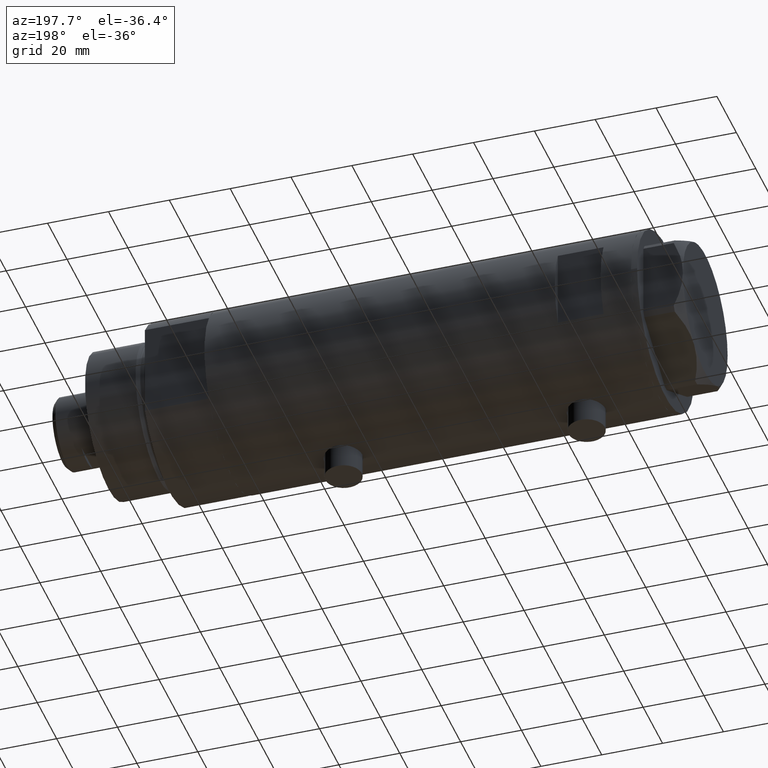
[diagram: clean part render]
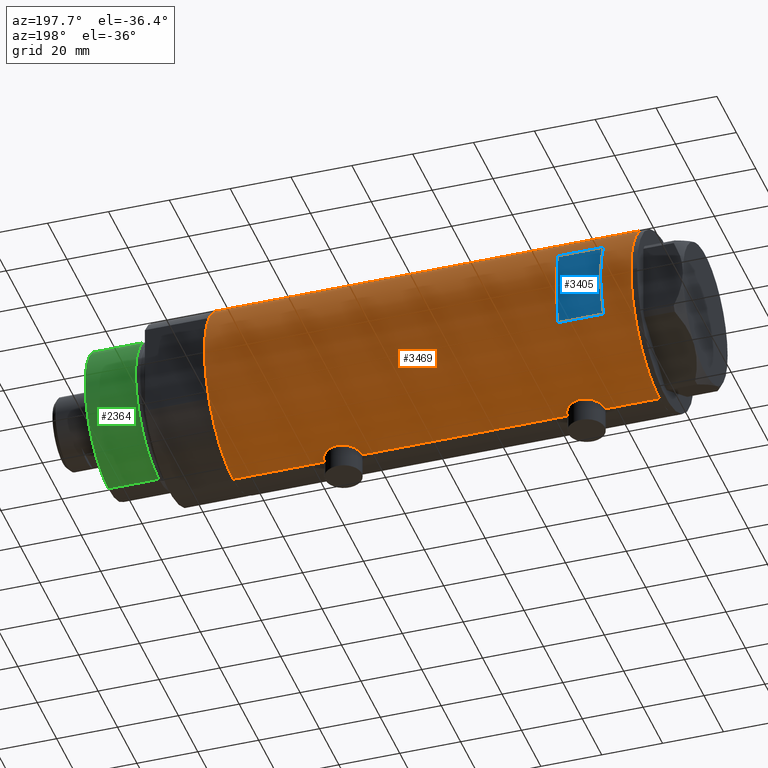
[diagram: same view with three faces highlighted in distinct colors, each labeled with its STEP entity id]
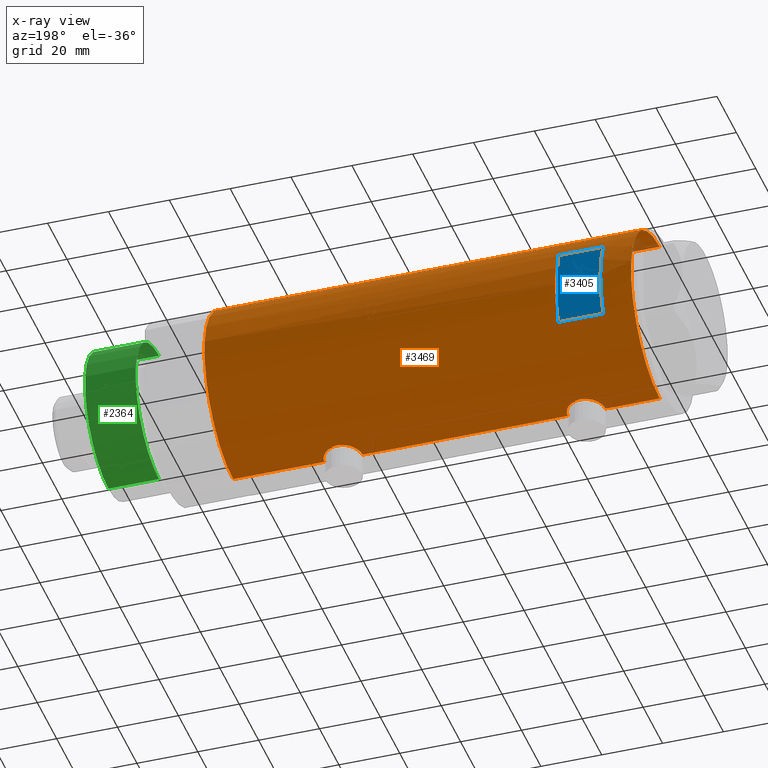
[diagram: x-ray of the same camera — body ghosted, the three highlighted faces saturated]
A machine part, auxiliary view with three faces highlighted in distinct colors.
The next image is the same camera in x-ray (body ghosted, the three faces saturated) — at least one of them is partly hidden behind the body in this view.
Their STEP definitions:

[orange] entity #3469 — the highlighted cylindrical surface (partial cylindrical patch) has radius 29.5 mm, axis along (-1, -0, 0).
#55 = CARTESIAN_POINT ( 'NONE',  ( -29.33379699751449365, 3.132328395749496064, 40.68767835513887121 ) ) ;
#59 = CARTESIAN_POINT ( 'NONE',  ( 12.96148139681573319, 26.49999999999999645, -70.09999999999999432 ) ) ;
#68 = DIRECTION ( 'NONE',  ( -0.000000000000000000, -0.000000000000000000, 1.000000000000000000 ) ) ;
#76 = EDGE_CURVE ( 'NONE', #2979, #2404, #1582, .T. ) ;
#93 = CARTESIAN_POINT ( 'NONE',  ( -29.50000000000000355, 3.612706708267620518E-15, 39.84999999999999432 ) ) ;
#96 = LINE ( 'NONE', #4211, #3566 ) ;
#101 = CARTESIAN_POINT ( 'NONE',  ( -29.43341305963175003, 2.016871341298211551, -39.72974668998804759 ) ) ;
#102 = VECTOR ( 'NONE', #4336, 1000.000000000000000 ) ;
#103 = ORIENTED_EDGE ( 'NONE', *, *, #2416, .T. ) ;
#118 = CARTESIAN_POINT ( 'NONE',  ( 29.31463363472446204, 3.333180401682677374, -37.63656844683045222 ) ) ;
#134 = CARTESIAN_POINT ( 'NONE',  ( 28.72066933684369516, 6.738715173607846332, -34.22836955953555105 ) ) ;
#139 = CARTESIAN_POINT ( 'NONE',  ( -29.48289442777306490, 1.024392307325225904, -39.96888222528700396 ) ) ;
#145 = VERTEX_POINT ( 'NONE', #4030 ) ;
#153 = CARTESIAN_POINT ( 'NONE',  ( 28.65280969280606982, 7.019670864411682309, -33.55213168683108904 ) ) ;
#166 = CARTESIAN_POINT ( 'NONE',  ( 29.17471722935868428, 4.373569479501278501, 43.50231157590983599 ) ) ;
#170 = AXIS2_PLACEMENT_3D ( 'NONE', #4398, #641, #4136 ) ;
#184 = CARTESIAN_POINT ( 'NONE',  ( -29.07990598238133018, 4.966177878631057752, -29.98314968353490073 ) ) ;
#259 = CARTESIAN_POINT ( 'NONE',  ( 28.86328010881652872, 6.097564286278109869, 53.97368290922695877 ) ) ;
#278 = EDGE_CURVE ( 'NONE', #145, #2404, #2893, .T. ) ;
#283 = CARTESIAN_POINT ( 'NONE',  ( 29.48463566286631377, 0.9832945201638395583, 57.03937451762292454 ) ) ;
#301 = EDGE_CURVE ( 'NONE', #3559, #2596, #2486, .T. ) ;
#303 = CARTESIAN_POINT ( 'NONE',  ( -29.21045586191521437, 4.133246019522339942, 50.80573901566481965 ) ) ;
#309 = CARTESIAN_POINT ( 'NONE',  ( 29.40387556522357571, 2.422597899785629227, 56.71486039769832388 ) ) ;
#336 = CARTESIAN_POINT ( 'NONE',  ( -29.25454443288369077, 3.812919888526640655, 51.06897379180909979 ) ) ;
#379 = CARTESIAN_POINT ( 'NONE',  ( -29.48933702067640539, 0.8192029158410143452, 39.90049277733301381 ) ) ;
#441 = CARTESIAN_POINT ( 'NONE',  ( 29.50000000000000355, 0.000000000000000000, -70.09999999999999432 ) ) ;
#447 = CARTESIAN_POINT ( 'NONE',  ( -28.99931529802530150, 5.412890550536860523, -36.93129199055215395 ) ) ;
#470 = CARTESIAN_POINT ( 'NONE',  ( -29.25435602127558354, 3.814249285079243101, -38.76783729533990908 ) ) ;
#487 = CARTESIAN_POINT ( 'NONE',  ( 29.45150476095191650, 1.707859807438201427, -38.20707118656058299 ) ) ;
#491 = DIRECTION ( 'NONE',  ( 0.000000000000000000, 0.000000000000000000, 1.000000000000000000 ) ) ;
#492 = CARTESIAN_POINT ( 'NONE',  ( -29.21113960567727474, 4.128622307952522164, -38.51014533383553129 ) ) ;
#509 = CARTESIAN_POINT ( 'NONE',  ( 28.53073993742368941, 7.499791908386146844, -31.39461948433038785 ) ) ;
#513 = CARTESIAN_POINT ( 'NONE',  ( -28.83028740688047620, 6.250162243045984667, -34.20646065908373146 ) ) ;
#534 = CARTESIAN_POINT ( 'NONE',  ( -29.50000000000000355, 3.612708057484692393E-15, -70.09999999999999432 ) ) ;
#535 = CARTESIAN_POINT ( 'NONE',  ( -28.83925158138409017, 6.209208576703539428, -34.62198382868808011 ) ) ;
#541 = CARTESIAN_POINT ( 'NONE',  ( 29.50000000000000355, -8.867894669064240341E-21, 57.09999999999999432 ) ) ;
#551 = DIRECTION ( 'NONE',  ( 1.000000000000000000, 0.000000000000000000, 0.000000000000000000 ) ) ;
#576 = CARTESIAN_POINT ( 'NONE',  ( 29.50000000000000355, -2.068661527048439545E-15, -38.39999999999999147 ) ) ;
#585 = CARTESIAN_POINT ( 'NONE',  ( 29.50000000000000355, -8.867894669064240341E-21, 57.09999999999999432 ) ) ;
#596 = CARTESIAN_POINT ( 'NONE',  ( 29.47533087885488712, 1.230190383163953571, -23.49747868232938686 ) ) ;
#607 = CARTESIAN_POINT ( 'NONE',  ( 28.54372006395177763, 7.450900983269891142, 50.58765735635913785 ) ) ;
#632 = CARTESIAN_POINT ( 'NONE',  ( -29.50000000000000355, -1.251314770453635394E-15, 52.34999999999999432 ) ) ;
#638 = CARTESIAN_POINT ( 'NONE',  ( 28.54350045195475971, 7.451747857568896016, 48.61733997124497364 ) ) ;
#641 = DIRECTION ( 'NONE',  ( 0.000000000000000000, 0.000000000000000000, 1.000000000000000000 ) ) ;
#653 = CARTESIAN_POINT ( 'NONE',  ( 28.95590528945747977, 5.641861744747094676, -25.95235088071115115 ) ) ;
#664 = CARTESIAN_POINT ( 'NONE',  ( 28.65280969280606982, 7.019670864411686750, 46.94786831316888964 ) ) ;
#676 = CARTESIAN_POINT ( 'NONE',  ( 0.000000000000000000, 0.000000000000000000, 60.09999999999998721 ) ) ;
#677 = CARTESIAN_POINT ( 'NONE',  ( -29.50000000000000355, 3.612708057484692393E-15, -70.09999999999999432 ) ) ;
#682 = CARTESIAN_POINT ( 'NONE',  ( -29.37156641804198287, 2.775801885207112019, 51.71472569706632783 ) ) ;
#688 = CARTESIAN_POINT ( 'NONE',  ( -29.37156641804197932, 2.775801885207114239, -28.18527430293367786 ) ) ;
#697 = DIRECTION ( 'NONE',  ( -1.000000000000000000, 3.552713678800500535E-15, 0.000000000000000000 ) ) ;
#717 = EDGE_CURVE ( 'NONE', #4413, #4468, #1466, .T. ) ;
#733 = CARTESIAN_POINT ( 'NONE',  ( -29.43187585711095267, 2.013330896687707927, -27.87959139970892508 ) ) ;
#793 = CARTESIAN_POINT ( 'NONE',  ( -29.21113960567726409, 4.128622307952519499, 41.38985466616446018 ) ) ;
#798 = CARTESIAN_POINT ( 'NONE',  ( -29.25454443288368367, 3.812919888526643764, -28.83102620819089168 ) ) ;
#830 = VECTOR ( 'NONE', #2309, 1000.000000000000000 ) ;
#839 = CARTESIAN_POINT ( 'NONE',  ( -29.37021410611213668, 2.770135525807583043, -39.40634069022829067 ) ) ;
#843 = ORIENTED_EDGE ( 'NONE', *, *, #3169, .T. ) ;
#861 = CARTESIAN_POINT ( 'NONE',  ( 29.40165444879503909, 2.418426732012822100, 42.49632943565210041 ) ) ;
#871 = CARTESIAN_POINT ( 'NONE',  ( 29.26187100173484978, 3.763222966830668703, -37.40598258060619230 ) ) ;
#876 = CARTESIAN_POINT ( 'NONE',  ( -29.38727827406289705, 2.583363936682820494, -39.49478026128666386 ) ) ;
#879 = CARTESIAN_POINT ( 'NONE',  ( 29.31463363472445849, 3.333180401682678262, 42.86343155316954778 ) ) ;
#887 = LINE ( 'NONE', #441, #1131 ) ;
#894 = AXIS2_PLACEMENT_3D ( 'NONE', #2444, #3142, #2137 ) ;
#901 = VECTOR ( 'NONE', #2636, 1000.000000000000000 ) ;
#922 = CARTESIAN_POINT ( 'NONE',  ( 29.05056090758568388, 5.132790299589556682, 44.12608273347915855 ) ) ;
#931 = DIRECTION ( 'NONE',  ( -0.000000000000000000, -0.000000000000000000, -1.000000000000000000 ) ) ;
#935 = CARTESIAN_POINT ( 'NONE',  ( -29.50000000000000711, 0.4142160563134682505, 52.34999999999998010 ) ) ;
#991 = CARTESIAN_POINT ( 'NONE',  ( 28.80468126786726657, 6.368639251981141669, 53.56860510682070498 ) ) ;
#1001 = DIRECTION ( 'NONE',  ( 0.000000000000000000, 0.000000000000000000, 1.000000000000000000 ) ) ;
#1017 = CARTESIAN_POINT ( 'NONE',  ( -29.46640581083893551, 1.421634556901802515, -27.71041108910579354 ) ) ;
#1061 = CARTESIAN_POINT ( 'NONE',  ( -29.45783481716065921, 1.627188261681548287, 40.05163589091055343 ) ) ;
#1131 = VECTOR ( 'NONE', #2175, 1000.000000000000000 ) ;
#1132 = CARTESIAN_POINT ( 'NONE',  ( -28.89816269917384517, 5.930588606439749277, 44.08529684457830200 ) ) ;
#1137 = CARTESIAN_POINT ( 'NONE',  ( -29.50000000000000355, 3.612706708236066082E-15, -40.05000000000000426 ) ) ;
#1158 = CARTESIAN_POINT ( 'NONE',  ( -28.99817753551064570, 5.423057650933437834, -30.66603848537406307 ) ) ;
#1170 = CARTESIAN_POINT ( 'NONE',  ( 28.89325003604223951, 5.958922200807236891, -35.48084786495515175 ) ) ;
#1187 = CARTESIAN_POINT ( 'NONE',  ( 28.58083212642746318, 7.306745240314148404, -32.60953669436207747 ) ) ;
#1191 = AXIS2_PLACEMENT_3D ( 'NONE', #4097, #1001, #551 ) ;
#1197 = CARTESIAN_POINT ( 'NONE',  ( 29.45150476095192360, 1.707859807438201871, 42.29292881343940280 ) ) ;
#1235 = CARTESIAN_POINT ( 'NONE',  ( 29.08204711695421452, 4.951923910293528408, 43.96183978405700543 ) ) ;
#1251 = CARTESIAN_POINT ( 'NONE',  ( -29.50000000000000355, 3.612708057484692393E-15, -70.09999999999999432 ) ) ;
#1259 = CARTESIAN_POINT ( 'NONE',  ( 28.72066933684370227, 6.738715173607846332, 46.27163044046444185 ) ) ;
#1291 = CARTESIAN_POINT ( 'NONE',  ( 28.72322018454529768, 6.726124749058826957, 52.92706852850999155 ) ) ;
#1336 = CARTESIAN_POINT ( 'NONE',  ( 29.49693976195336020, 0.4910732786937798133, 57.08799094295623178 ) ) ;
#1370 = CARTESIAN_POINT ( 'NONE',  ( 28.72322018454529768, 6.726124749058831398, -27.57293147149000490 ) ) ;
#1393 = CARTESIAN_POINT ( 'NONE',  ( -28.87327190949137901, 6.049038945481235885, 44.47548271794828167 ) ) ;
#1437 = ORIENTED_EDGE ( 'NONE', *, *, #76, .T. ) ;
#1466 = CIRCLE ( 'NONE', #1888, 29.50000000000000355 ) ;
#1480 = CARTESIAN_POINT ( 'NONE',  ( -29.49787850362430319, 0.4089683628077628863, -40.04001026437014588 ) ) ;
#1498 = CARTESIAN_POINT ( 'NONE',  ( 29.17471722935867717, 4.373569479501276724, -36.99768842409014269 ) ) ;
#1502 = CARTESIAN_POINT ( 'NONE',  ( -28.94521404191312186, 5.694822755760260868, -36.38333046401345428 ) ) ;
#1519 = CARTESIAN_POINT ( 'NONE',  ( 29.50000000000000711, 0.4977435627019808351, 42.09999999999998721 ) ) ;
#1538 = CARTESIAN_POINT ( 'NONE',  ( 28.54372006395178119, 7.450900983269892031, -29.91234264364084794 ) ) ;
#1575 = LINE ( 'NONE', #2970, #102 ) ;
#1582 = LINE ( 'NONE', #534, #1679 ) ;
#1585 = CARTESIAN_POINT ( 'NONE',  ( 28.53073993742368586, 7.499791908386146844, 49.10538051566958018 ) ) ;
#1608 = B_SPLINE_CURVE_WITH_KNOTS ( 'NONE', 3,
 ( #4326, #1519, #3616, #1197, #3947, #861, #1878, #879, #3278, #166, #4307, #1235, #922, #2025, #2323, #4110, #1259, #664, #2352, #3728, #4035, #638, #1585, #3031, #607, #3050, #3323, #2738, #1291, #2286, #991, #259, #2642, #1972, #1998, #3419, #3682, #2711, #4008, #309, #3011, #2980, #283, #1336, #2683, #585 ),
 .UNSPECIFIED., .F., .F.,
 ( 4, 2, 2, 2, 2, 2, 2, 2, 2, 2, 2, 2, 2, 2, 2, 2, 2, 2, 2, 2, 2, 2, 4 ),
 ( 1.324216582005999085E-18, 0.001471587963626213007, 0.002207381945439318427, 0.002943175927252423846, 0.004414763890878634252, 0.005150557872691738370, 0.005886351854504841621, 0.007357939818131030776, 0.008829527781757219931, 0.009565321763570316244, 0.01030111574538341256, 0.01177270370900960171, 0.01324429167263579260, 0.01471587963626198176, 0.01545167361807507807, 0.01618746759988817091, 0.01692326158170126896, 0.01765905556351436007, 0.01913064352714053881, 0.02060223149076671756, 0.02207381945439289284, 0.02280961343620598047, 0.02354540741801906811 ),
 .UNSPECIFIED. ) ;
#1629 = CARTESIAN_POINT ( 'NONE',  ( 28.77649569280672992, 6.494415104660919091, -27.14065011183376441 ) ) ;
#1650 = CARTESIAN_POINT ( 'NONE',  ( 28.69800960089390074, 6.832546664705481554, -27.79724969708692583 ) ) ;
#1669 = FACE_BOUND ( 'NONE', #1903, .T. ) ;
#1677 = CARTESIAN_POINT ( 'NONE',  ( -29.07990598238133373, 4.966177878631058640, 49.91685031646510140 ) ) ;
#1679 = VECTOR ( 'NONE', #491, 1000.000000000000000 ) ;
#1708 = CARTESIAN_POINT ( 'NONE',  ( -28.99817753551063859, 5.423057650933438723, 49.23396151462593195 ) ) ;
#1724 = CARTESIAN_POINT ( 'NONE',  ( -28.91416466586724354, 5.850419487802253293, 48.30827647633628175 ) ) ;
#1745 = CARTESIAN_POINT ( 'NONE',  ( -29.49787850362430675, 0.4089683628077635524, 39.85998973562985270 ) ) ;
#1780 = ORIENTED_EDGE ( 'NONE', *, *, #2992, .F. ) ;
#1797 = ORIENTED_EDGE ( 'NONE', *, *, #2908, .F. ) ;
#1809 = CARTESIAN_POINT ( 'NONE',  ( -29.48289442777306490, 1.024392307325222573, 39.93111777471299462 ) ) ;
#1814 = EDGE_CURVE ( 'NONE', #3449, #4413, #3470, .T. ) ;
#1818 = LINE ( 'NONE', #3513, #3226 ) ;
#1838 = CARTESIAN_POINT ( 'NONE',  ( -29.12335997091253148, 4.707903814166467527, -29.66921992621196225 ) ) ;
#1847 = EDGE_CURVE ( 'NONE', #2979, #4460, #3439, .T. ) ;
#1856 = CARTESIAN_POINT ( 'NONE',  ( -29.50000000000000355, 3.612706708236066082E-15, -40.05000000000000426 ) ) ;
#1871 = CARTESIAN_POINT ( 'NONE',  ( 28.53063088452982043, 7.500206755597514707, -30.41171143095193585 ) ) ;
#1876 = CARTESIAN_POINT ( 'NONE',  ( -29.31451746246149526, 3.307268797680004369, -39.10714841985004142 ) ) ;
#1878 = CARTESIAN_POINT ( 'NONE',  ( 29.38138226830144006, 2.652609128011935269, 42.58045398040328422 ) ) ;
#1888 = AXIS2_PLACEMENT_3D ( 'NONE', #3185, #68, #697 ) ;
#1896 = CARTESIAN_POINT ( 'NONE',  ( 29.43668864566816623, 1.946133027943908855, -38.14730912701000420 ) ) ;
#1903 = EDGE_LOOP ( 'NONE', ( #4348, #2024, #4322, #4038 ) ) ;
#1937 = CARTESIAN_POINT ( 'NONE',  ( 29.38138226830143296, 2.652609128011934825, -37.91954601959669446 ) ) ;
#1950 = ORIENTED_EDGE ( 'NONE', *, *, #278, .F. ) ;
#1955 = VECTOR ( 'NONE', #2487, 1000.000000000000000 ) ;
#1972 = CARTESIAN_POINT ( 'NONE',  ( 28.95590528945748687, 5.641861744747095564, 54.54764911928883464 ) ) ;
#1989 = CARTESIAN_POINT ( 'NONE',  ( 29.49999999999999645, 0.2453482418156872069, -23.39999999999998792 ) ) ;
#1993 = CARTESIAN_POINT ( 'NONE',  ( -29.43187585711095267, 2.013330896687707927, 52.02040860029106994 ) ) ;
#1998 = CARTESIAN_POINT ( 'NONE',  ( 28.98787507734748914, 5.475789924529796515, 54.73089043376624119 ) ) ;
#2002 = ORIENTED_EDGE ( 'NONE', *, *, #1847, .F. ) ;
#2024 = ORIENTED_EDGE ( 'NONE', *, *, #1814, .F. ) ;
#2025 = CARTESIAN_POINT ( 'NONE',  ( 28.95615051861771860, 5.649234316505054032, 44.64284581253273387 ) ) ;
#2033 = CARTESIAN_POINT ( 'NONE',  ( 28.86328010881652872, 6.097564286278116086, -26.52631709077303768 ) ) ;
#2068 = CARTESIAN_POINT ( 'NONE',  ( -28.83909818927745050, 6.209925900742495841, 46.91778075451993857 ) ) ;
#2091 = CARTESIAN_POINT ( 'NONE',  ( -29.07940225710133575, 4.969011347753390595, 42.28730265529815568 ) ) ;
#2131 = CIRCLE ( 'NONE', #170, 29.50000000000000355 ) ;
#2137 = DIRECTION ( 'NONE',  ( 1.000000000000000000, 0.000000000000000000, 0.000000000000000000 ) ) ;
#2158 = CARTESIAN_POINT ( 'NONE',  ( -29.37021410611214023, 2.770135525807581711, 40.49365930977168659 ) ) ;
#2175 = DIRECTION ( 'NONE',  ( 0.000000000000000000, 0.000000000000000000, 1.000000000000000000 ) ) ;
#2180 = CARTESIAN_POINT ( 'NONE',  ( -28.83909818927744695, 6.209925900742495841, -32.98221924548006001 ) ) ;
#2181 = B_SPLINE_CURVE_WITH_KNOTS ( 'NONE', 3,
 ( #576, #2972, #3271, #487, #1896, #2229, #1937, #118, #871, #1498, #3253, #3938, #3294, #4255, #1170, #2547, #134, #153, #2574, #4269, #1187, #3609, #509, #1871, #1538, #2929, #4453, #1650, #1370, #1629, #3023, #2033, #4432, #653, #3408, #2655, #4074, #3039, #4101, #4372, #3785, #596, #2696, #3743, #1989, #2674 ),
 .UNSPECIFIED., .F., .F.,
 ( 4, 2, 2, 2, 2, 2, 2, 2, 2, 2, 2, 2, 2, 2, 2, 2, 2, 2, 2, 2, 2, 2, 4 ),
 ( 2.009130182846392961E-18, 0.001471587963626178313, 0.002207381945439266819, 0.002943175927252355759, 0.004414763890878538842, 0.005150557872691629950, 0.005886351854504721925, 0.007357939818130915417, 0.008829527781757108909, 0.009565321763570205221, 0.01030111574538330153, 0.01177270370900949416, 0.01324429167263568505, 0.01471587963626187941, 0.01545167361807497398, 0.01618746759988807030, 0.01692326158170116834, 0.01765905556351426292, 0.01913064352714046595, 0.02060223149076666205, 0.02207381945439286508, 0.02280961343620596313, 0.02354540741801906117 ),
 .UNSPECIFIED. ) ;
#2229 = CARTESIAN_POINT ( 'NONE',  ( 29.40165444879503909, 2.418426732012822544, -38.00367056434787116 ) ) ;
#2235 = CARTESIAN_POINT ( 'NONE',  ( -28.86473101544358144, 6.089252369705489443, -32.37667050833967863 ) ) ;
#2256 = CARTESIAN_POINT ( 'NONE',  ( -29.21045586191521082, 4.133246019522339942, -29.09426098433517893 ) ) ;
#2277 = CARTESIAN_POINT ( 'NONE',  ( 29.50000000000000355, 0.000000000000000000, 70.09999999999999432 ) ) ;
#2286 = CARTESIAN_POINT ( 'NONE',  ( 28.77649569280673703, 6.494415104660911986, 53.35934988816622848 ) ) ;
#2309 = DIRECTION ( 'NONE',  ( 0.000000000000000000, 0.000000000000000000, 1.000000000000000000 ) ) ;
#2323 = CARTESIAN_POINT ( 'NONE',  ( 28.89325003604224307, 5.958922200807236891, 45.01915213504484825 ) ) ;
#2345 = LINE ( 'NONE', #1251, #901 ) ;
#2352 = CARTESIAN_POINT ( 'NONE',  ( 28.63233008736633778, 7.102474189478610533, 47.17814868761112024 ) ) ;
#2372 = CARTESIAN_POINT ( 'NONE',  ( -12.96148139681573319, 26.49999999999998934, 60.09999999999998721 ) ) ;
#2402 = CARTESIAN_POINT ( 'NONE',  ( -29.45614208737134021, 1.620034288692375091, -27.76011356088387672 ) ) ;
#2404 = VERTEX_POINT ( 'NONE', #4270 ) ;
#2416 = EDGE_CURVE ( 'NONE', #145, #3122, #96, .T. ) ;
#2417 = CARTESIAN_POINT ( 'NONE',  ( -28.86473101544358855, 6.089252369705490331, 47.52332949166031995 ) ) ;
#2444 = CARTESIAN_POINT ( 'NONE',  ( 0.000000000000000000, 0.000000000000000000, -70.09999999999999432 ) ) ;
#2483 = CARTESIAN_POINT ( 'NONE',  ( -29.38727827406289705, 2.583363936682818274, 40.40521973871332762 ) ) ;
#2486 = CIRCLE ( 'NONE', #894, 29.50000000000000355 ) ;
#2487 = DIRECTION ( 'NONE',  ( -0.000000000000000000, -0.000000000000000000, -1.000000000000000000 ) ) ;
#2491 = VERTEX_POINT ( 'NONE', #2277 ) ;
#2506 = CARTESIAN_POINT ( 'NONE',  ( -28.94521404191311120, 5.694822755760257316, 43.51666953598655141 ) ) ;
#2530 = EDGE_LOOP ( 'NONE', ( #2828, #843, #2002, #1437, #1950, #103, #3622, #1797, #1780, #3056, #3753, #2742 ) ) ;
#2539 = CARTESIAN_POINT ( 'NONE',  ( 29.50000000000000355, -2.068661527048439545E-15, -38.39999999999999147 ) ) ;
#2547 = CARTESIAN_POINT ( 'NONE',  ( 28.77473834757382321, 6.507156404236259739, -34.66162684060295618 ) ) ;
#2574 = CARTESIAN_POINT ( 'NONE',  ( 28.63233008736633778, 7.102474189478609645, -33.32185131238886555 ) ) ;
#2576 = AXIS2_PLACEMENT_3D ( 'NONE', #676, #931, #2728 ) ;
#2582 = CARTESIAN_POINT ( 'NONE',  ( -29.50000000000000355, 7.333735512235174214E-18, -27.54999999999999361 ) ) ;
#2596 = VERTEX_POINT ( 'NONE', #677 ) ;
#2636 = DIRECTION ( 'NONE',  ( 0.000000000000000000, 0.000000000000000000, 1.000000000000000000 ) ) ;
#2642 = CARTESIAN_POINT ( 'NONE',  ( 28.89369475765811757, 5.952264974793427754, 54.16950516186245324 ) ) ;
#2655 = CARTESIAN_POINT ( 'NONE',  ( 29.08308069045668276, 4.954707331652127955, -25.24826371623226962 ) ) ;
#2659 = CARTESIAN_POINT ( 'NONE',  ( -29.12335997091252793, 4.707903814166468415, 50.23078007378799725 ) ) ;
#2674 = CARTESIAN_POINT ( 'NONE',  ( 29.50000000000000355, -8.867894669064240341E-21, -23.39999999999999147 ) ) ;
#2683 = CARTESIAN_POINT ( 'NONE',  ( 29.50000000000000711, 0.2453482418156837930, 57.10000000000000853 ) ) ;
#2685 = LINE ( 'NONE', #4419, #830 ) ;
#2696 = CARTESIAN_POINT ( 'NONE',  ( 29.48463566286630666, 0.9832945201638434440, -23.46062548237705414 ) ) ;
#2711 = CARTESIAN_POINT ( 'NONE',  ( 29.26131531204081426, 3.767377415172554311, 56.10345302571128201 ) ) ;
#2724 = CYLINDRICAL_SURFACE ( 'NONE', #1191, 29.50000000000000355 ) ;
#2728 = DIRECTION ( 'NONE',  ( 1.000000000000000000, -1.776356839400250267E-15, 0.000000000000000000 ) ) ;
#2733 = VERTEX_POINT ( 'NONE', #541 ) ;
#2738 = CARTESIAN_POINT ( 'NONE',  ( 28.69800960089390074, 6.832546664705480666, 52.70275030291305285 ) ) ;
#2742 = ORIENTED_EDGE ( 'NONE', *, *, #3350, .F. ) ;
#2753 = CARTESIAN_POINT ( 'NONE',  ( -28.90008889585329399, 5.919338933253947665, 48.11640207058049157 ) ) ;
#2779 = CARTESIAN_POINT ( 'NONE',  ( -29.25435602127557999, 3.814249285079248430, 41.13216270466008950 ) ) ;
#2788 = CARTESIAN_POINT ( 'NONE',  ( -29.50000000000000711, 0.4142160563134684170, -27.54999999999999716 ) ) ;
#2822 = CARTESIAN_POINT ( 'NONE',  ( -28.83925158138407951, 6.209208576703536764, 45.27801617131193268 ) ) ;
#2828 = ORIENTED_EDGE ( 'NONE', *, *, #301, .T. ) ;
#2847 = CARTESIAN_POINT ( 'NONE',  ( -28.83035796536222151, 6.249836767212675781, -33.38856505377280826 ) ) ;
#2848 = CARTESIAN_POINT ( 'NONE',  ( 12.96148139681571898, 26.50000000000000355, 45.09999999999998721 ) ) ;
#2850 = VERTEX_POINT ( 'NONE', #2539 ) ;
#2890 = CARTESIAN_POINT ( 'NONE',  ( -29.07940225710135351, 4.969011347753392371, -37.61269734470183579 ) ) ;
#2893 = B_SPLINE_CURVE_WITH_KNOTS ( 'NONE', 3,
 ( #632, #935, #3393, #4081, #3750, #1993, #3772, #682, #3414, #336, #303, #2659, #1677, #1708, #3099, #1724, #2753, #4126, #2417, #2068, #3464, #3120, #2822, #1393, #1132, #2506, #4238, #3170, #3881, #2091, #3482, #793, #2779, #4151, #55, #2158, #2483, #3542, #1061, #1809, #379, #1745, #3854, #93 ),
 .UNSPECIFIED., .F., .F.,
 ( 4, 2, 2, 2, 2, 2, 2, 2, 2, 2, 2, 2, 2, 2, 2, 2, 2, 2, 2, 2, 2, 4 ),
 ( 1.215526637565713846E-18, 0.001224749128302325164, 0.001837123692453484711, 0.002449498256604644257, 0.003674247384906971156, 0.004898996513209298923, 0.006123745641511625822, 0.007348494769813952721, 0.007960869333965118338, 0.008573243898116282222, 0.009797993026418609988, 0.01102274215472093775, 0.01224749128302326726, 0.01285986584717442247, 0.01347224041132557767, 0.01469698953962788809, 0.01592173866793019851, 0.01653411323208135372, 0.01714648779623250893, 0.01837123692453480894, 0.01898361148868596068, 0.01959598605283711242 ),
 .UNSPECIFIED. ) ;
#2908 = EDGE_CURVE ( 'NONE', #2733, #2491, #2685, .T. ) ;
#2910 = CARTESIAN_POINT ( 'NONE',  ( -28.96258065965881556, 5.606121065329693565, -36.57051985068761013 ) ) ;
#2929 = CARTESIAN_POINT ( 'NONE',  ( 28.59328333056173221, 7.258376466535469973, -28.94875332515167798 ) ) ;
#2937 = CARTESIAN_POINT ( 'NONE',  ( -28.90008889585329044, 5.919338933253947665, -31.78359792941951056 ) ) ;
#2940 = VERTEX_POINT ( 'NONE', #3015 ) ;
#2970 = CARTESIAN_POINT ( 'NONE',  ( 29.50000000000000355, 0.000000000000000000, -70.09999999999999432 ) ) ;
#2972 = CARTESIAN_POINT ( 'NONE',  ( 29.50000000000000000, 0.4977435627019808351, -38.39999999999999147 ) ) ;
#2979 = VERTEX_POINT ( 'NONE', #2582 ) ;
#2980 = CARTESIAN_POINT ( 'NONE',  ( 29.47533087885489067, 1.230190383163956458, 57.00252131767059183 ) ) ;
#2992 = EDGE_CURVE ( 'NONE', #3903, #2733, #1608, .T. ) ;
#3011 = CARTESIAN_POINT ( 'NONE',  ( 29.43913092143246146, 1.954882548385549423, 56.85749234733351187 ) ) ;
#3015 = CARTESIAN_POINT ( 'NONE',  ( 29.50000000000000355, -8.867894669064240341E-21, -23.39999999999999147 ) ) ;
#3023 = CARTESIAN_POINT ( 'NONE',  ( 28.80468126786726657, 6.368639251981146998, -26.93139489317929502 ) ) ;
#3031 = CARTESIAN_POINT ( 'NONE',  ( 28.53063088452982043, 7.500206755597514707, 50.08828856904803928 ) ) ;
#3039 = CARTESIAN_POINT ( 'NONE',  ( 29.26131531204080360, 3.767377415172554311, -24.39654697428870733 ) ) ;
#3050 = CARTESIAN_POINT ( 'NONE',  ( 28.59328333056173221, 7.258376466535469085, 51.55124667484830780 ) ) ;
#3056 = ORIENTED_EDGE ( 'NONE', *, *, #3488, .F. ) ;
#3060 = FACE_OUTER_BOUND ( 'NONE', #2530, .T. ) ;
#3099 = CARTESIAN_POINT ( 'NONE',  ( -28.96085629491409463, 5.616414220648533018, 48.87199639590006939 ) ) ;
#3120 = CARTESIAN_POINT ( 'NONE',  ( -28.83028740688048686, 6.250162243045983779, 45.69353934091627423 ) ) ;
#3122 = VERTEX_POINT ( 'NONE', #4026 ) ;
#3142 = DIRECTION ( 'NONE',  ( 0.000000000000000000, 0.000000000000000000, 1.000000000000000000 ) ) ;
#3169 = EDGE_CURVE ( 'NONE', #2596, #4460, #2345, .T. ) ;
#3170 = CARTESIAN_POINT ( 'NONE',  ( -28.99931529802529795, 5.412890550536858747, 42.96870800944780910 ) ) ;
#3185 = CARTESIAN_POINT ( 'NONE',  ( 0.000000000000000000, 0.000000000000000000, 45.09999999999998721 ) ) ;
#3215 = CARTESIAN_POINT ( 'NONE',  ( -29.12318177724206336, 4.709191267490246524, -37.92971050241653330 ) ) ;
#3226 = VECTOR ( 'NONE', #4200, 1000.000000000000000 ) ;
#3228 = VERTEX_POINT ( 'NONE', #2372 ) ;
#3238 = CARTESIAN_POINT ( 'NONE',  ( -29.50000000000000355, 0.2042768310961494138, -40.05000000000001137 ) ) ;
#3253 = CARTESIAN_POINT ( 'NONE',  ( 29.14416130131008842, 4.572185141625601190, -36.85025411765555958 ) ) ;
#3271 = CARTESIAN_POINT ( 'NONE',  ( 29.48742029994219038, 0.9867701249543442410, -38.35094507494218874 ) ) ;
#3276 = CARTESIAN_POINT ( 'NONE',  ( -29.48933702067640539, 0.8192029158410158995, -39.99950722266698477 ) ) ;
#3278 = CARTESIAN_POINT ( 'NONE',  ( 29.26187100173485334, 3.763222966830669147, 43.09401741939380059 ) ) ;
#3294 = CARTESIAN_POINT ( 'NONE',  ( 29.05056090758568388, 5.132790299589557570, -36.37391726652082724 ) ) ;
#3323 = CARTESIAN_POINT ( 'NONE',  ( 28.62953349941190240, 7.116010646391488947, 52.01979460923099197 ) ) ;
#3350 = EDGE_CURVE ( 'NONE', #3559, #2850, #887, .T. ) ;
#3370 = CIRCLE ( 'NONE', #2576, 29.50000000000000355 ) ;
#3393 = CARTESIAN_POINT ( 'NONE',  ( -29.49128627113591961, 0.8212788586050381312, 52.30923124908873945 ) ) ;
#3408 = CARTESIAN_POINT ( 'NONE',  ( 28.98787507734748203, 5.475789924529798292, -25.76910956623374460 ) ) ;
#3414 = CARTESIAN_POINT ( 'NONE',  ( -29.33500454540941149, 3.134363790739242095, 51.52262134463679644 ) ) ;
#3419 = CARTESIAN_POINT ( 'NONE',  ( 29.08308069045668631, 4.954707331652121738, 55.25173628376772683 ) ) ;
#3439 = B_SPLINE_CURVE_WITH_KNOTS ( 'NONE', 3,
 ( #3801, #2788, #4157, #1017, #2402, #733, #3778, #688, #3919, #798, #2256, #1838, #184, #1158, #3595, #3634, #2937, #4216, #2235, #2180, #2847, #513, #535, #3614, #3548, #1502, #2910, #447, #4304, #2890, #3215, #492, #470, #1876, #3945, #839, #876, #101, #3571, #139, #3276, #1480, #3238, #1137 ),
 .UNSPECIFIED., .F., .F.,
 ( 4, 2, 2, 2, 2, 2, 2, 2, 2, 2, 2, 2, 2, 2, 2, 2, 2, 2, 2, 2, 2, 4 ),
 ( 7.123987567693931303E-21, 0.001224749128302327550, 0.001837123692453492083, 0.002449498256604656400, 0.003674247384906980697, 0.004898996513209304994, 0.006123745641511629291, 0.007348494769813953588, 0.007960869333965100991, 0.008573243898116250997, 0.009797993026418545803, 0.01102274215472084234, 0.01224749128302314062, 0.01285986584717429930, 0.01347224041132545451, 0.01469698953962778921, 0.01592173866793012219, 0.01653411323208128780, 0.01714648779623245689, 0.01837123692453478466, 0.01898361148868595374, 0.01959598605283711936 ),
 .UNSPECIFIED. ) ;
#3449 = VERTEX_POINT ( 'NONE', #4070 ) ;
#3464 = CARTESIAN_POINT ( 'NONE',  ( -28.83035796536222861, 6.249836767212678446, 46.51143494622721164 ) ) ;
#3469 = ADVANCED_FACE ( 'NONE', ( #1669, #3060 ), #2724, .T. ) ;
#3470 = LINE ( 'NONE', #59, #1955 ) ;
#3482 = CARTESIAN_POINT ( 'NONE',  ( -29.12318177724206336, 4.709191267490243860, 41.97028949758345817 ) ) ;
#3488 = EDGE_CURVE ( 'NONE', #2940, #3903, #1575, .T. ) ;
#3513 = CARTESIAN_POINT ( 'NONE',  ( -12.96148139681573319, 26.49999999999999645, -70.09999999999999432 ) ) ;
#3542 = CARTESIAN_POINT ( 'NONE',  ( -29.43341305963176424, 2.016871341298207998, 40.17025331001194388 ) ) ;
#3548 = CARTESIAN_POINT ( 'NONE',  ( -28.89816269917384872, 5.930588606439748389, -35.81470315542169658 ) ) ;
#3559 = VERTEX_POINT ( 'NONE', #3688 ) ;
#3566 = VECTOR ( 'NONE', #3912, 1000.000000000000000 ) ;
#3571 = CARTESIAN_POINT ( 'NONE',  ( -29.45783481716065211, 1.627188261681552950, -39.84836410908945226 ) ) ;
#3595 = CARTESIAN_POINT ( 'NONE',  ( -28.96085629491409108, 5.616414220648534794, -31.02800360409991498 ) ) ;
#3609 = CARTESIAN_POINT ( 'NONE',  ( 28.54350045195475261, 7.451747857568895128, -31.88266002875499794 ) ) ;
#3614 = CARTESIAN_POINT ( 'NONE',  ( -28.87327190949137901, 6.049038945481233220, -35.42451728205170980 ) ) ;
#3616 = CARTESIAN_POINT ( 'NONE',  ( 29.48742029994219038, 0.9867701249543437969, 42.14905492505778994 ) ) ;
#3622 = ORIENTED_EDGE ( 'NONE', *, *, #3899, .F. ) ;
#3634 = CARTESIAN_POINT ( 'NONE',  ( -28.91416466586724709, 5.850419487802254181, -31.59172352366371328 ) ) ;
#3682 = CARTESIAN_POINT ( 'NONE',  ( 29.14546206473282197, 4.578181670952601756, 55.56056091603292657 ) ) ;
#3688 = CARTESIAN_POINT ( 'NONE',  ( 29.50000000000000355, 0.000000000000000000, -70.09999999999999432 ) ) ;
#3728 = CARTESIAN_POINT ( 'NONE',  ( 28.59637095282950625, 7.245897747848926151, 47.64872625722391319 ) ) ;
#3743 = CARTESIAN_POINT ( 'NONE',  ( 29.49693976195335310, 0.4910732786937820893, -23.41200905704375046 ) ) ;
#3750 = CARTESIAN_POINT ( 'NONE',  ( -29.45614208737133310, 1.620034288692374647, 52.13988643911609699 ) ) ;
#3753 = ORIENTED_EDGE ( 'NONE', *, *, #4194, .F. ) ;
#3763 = CARTESIAN_POINT ( 'NONE',  ( 29.50000000000000355, -1.363453657738827866E-15, 42.09999999999999432 ) ) ;
#3772 = CARTESIAN_POINT ( 'NONE',  ( -29.41782704931129899, 2.208494778271261172, 51.95038297927174398 ) ) ;
#3778 = CARTESIAN_POINT ( 'NONE',  ( -29.41782704931129899, 2.208494778271265169, -27.94961702072823684 ) ) ;
#3785 = CARTESIAN_POINT ( 'NONE',  ( 29.43913092143246857, 1.954882548385551644, -23.64250765266648102 ) ) ;
#3801 = CARTESIAN_POINT ( 'NONE',  ( -29.50000000000000355, 7.333735512235174214E-18, -27.54999999999999361 ) ) ;
#3854 = CARTESIAN_POINT ( 'NONE',  ( -29.50000000000000711, 0.2042768310961484424, 39.84999999999999432 ) ) ;
#3881 = CARTESIAN_POINT ( 'NONE',  ( -29.01875661852154664, 5.308007315943999771, 42.79411629999108158 ) ) ;
#3899 = EDGE_CURVE ( 'NONE', #2491, #3122, #2131, .T. ) ;
#3903 = VERTEX_POINT ( 'NONE', #3763 ) ;
#3912 = DIRECTION ( 'NONE',  ( 0.000000000000000000, 0.000000000000000000, 1.000000000000000000 ) ) ;
#3919 = CARTESIAN_POINT ( 'NONE',  ( -29.33500454540941149, 3.134363790739243871, -28.37737865536320570 ) ) ;
#3938 = CARTESIAN_POINT ( 'NONE',  ( 29.08204711695422517, 4.951923910293530184, -36.53816021594297325 ) ) ;
#3945 = CARTESIAN_POINT ( 'NONE',  ( -29.33379699751450431, 3.132328395749495620, -39.21232164486112026 ) ) ;
#3947 = CARTESIAN_POINT ( 'NONE',  ( 29.43668864566815913, 1.946133027943908633, 42.35269087298997448 ) ) ;
#4008 = CARTESIAN_POINT ( 'NONE',  ( 29.31521205951408859, 3.327945423969223881, 56.33906509227089288 ) ) ;
#4026 = CARTESIAN_POINT ( 'NONE',  ( -29.50000000000000355, 3.612708057484692393E-15, 70.09999999999999432 ) ) ;
#4030 = CARTESIAN_POINT ( 'NONE',  ( -29.50000000000000355, -1.251314770453635394E-15, 52.34999999999999432 ) ) ;
#4035 = CARTESIAN_POINT ( 'NONE',  ( 28.58083212642745607, 7.306745240314146628, 47.89046330563792253 ) ) ;
#4038 = ORIENTED_EDGE ( 'NONE', *, *, #4093, .F. ) ;
#4070 = CARTESIAN_POINT ( 'NONE',  ( 12.96148139681573319, 26.49999999999998934, 60.09999999999998721 ) ) ;
#4074 = CARTESIAN_POINT ( 'NONE',  ( 29.14546206473282197, 4.578181670952601756, -24.93943908396707698 ) ) ;
#4081 = CARTESIAN_POINT ( 'NONE',  ( -29.46640581083894617, 1.421634556901803403, 52.18958891089418017 ) ) ;
#4093 = EDGE_CURVE ( 'NONE', #4468, #3228, #1818, .T. ) ;
#4097 = CARTESIAN_POINT ( 'NONE',  ( 0.000000000000000000, 0.000000000000000000, -70.09999999999999432 ) ) ;
#4101 = CARTESIAN_POINT ( 'NONE',  ( 29.31521205951408504, 3.327945423969221217, -24.16093490772910357 ) ) ;
#4110 = CARTESIAN_POINT ( 'NONE',  ( 28.77473834757381610, 6.507156404236260627, 45.83837315939703672 ) ) ;
#4126 = CARTESIAN_POINT ( 'NONE',  ( -28.87539346372184568, 6.038655803256916421, 47.72452664083071738 ) ) ;
#4136 = DIRECTION ( 'NONE',  ( 1.000000000000000000, 0.000000000000000000, 0.000000000000000000 ) ) ;
#4151 = CARTESIAN_POINT ( 'NONE',  ( -29.31451746246148460, 3.307268797680008365, 40.79285158014994295 ) ) ;
#4157 = CARTESIAN_POINT ( 'NONE',  ( -29.49128627113591250, 0.8212788586050365769, -27.59076875091126269 ) ) ;
#4176 = CARTESIAN_POINT ( 'NONE',  ( -12.96148139681574030, 26.50000000000000355, 45.09999999999998721 ) ) ;
#4194 = EDGE_CURVE ( 'NONE', #2850, #2940, #2181, .T. ) ;
#4199 = EDGE_CURVE ( 'NONE', #3228, #3449, #3370, .T. ) ;
#4200 = DIRECTION ( 'NONE',  ( 0.000000000000000000, 0.000000000000000000, 1.000000000000000000 ) ) ;
#4211 = CARTESIAN_POINT ( 'NONE',  ( -29.50000000000000355, 3.612708057484692393E-15, -70.09999999999999432 ) ) ;
#4216 = CARTESIAN_POINT ( 'NONE',  ( -28.87539346372183857, 6.038655803256918198, -32.17547335916925277 ) ) ;
#4238 = CARTESIAN_POINT ( 'NONE',  ( -28.96258065965880846, 5.606121065329690900, 43.32948014931237424 ) ) ;
#4255 = CARTESIAN_POINT ( 'NONE',  ( 28.95615051861772571, 5.649234316505056697, -35.85715418746725192 ) ) ;
#4269 = CARTESIAN_POINT ( 'NONE',  ( 28.59637095282950270, 7.245897747848926151, -32.85127374277607970 ) ) ;
#4270 = CARTESIAN_POINT ( 'NONE',  ( -29.50000000000000355, 3.612706708267620518E-15, 39.84999999999999432 ) ) ;
#4304 = CARTESIAN_POINT ( 'NONE',  ( -29.01875661852154309, 5.308007315943998883, -37.10588370000889569 ) ) ;
#4307 = CARTESIAN_POINT ( 'NONE',  ( 29.14416130131007421, 4.572185141625601190, 43.64974588234441910 ) ) ;
#4322 = ORIENTED_EDGE ( 'NONE', *, *, #4199, .F. ) ;
#4326 = CARTESIAN_POINT ( 'NONE',  ( 29.50000000000000355, -1.363453657738827866E-15, 42.09999999999999432 ) ) ;
#4336 = DIRECTION ( 'NONE',  ( 0.000000000000000000, 0.000000000000000000, 1.000000000000000000 ) ) ;
#4348 = ORIENTED_EDGE ( 'NONE', *, *, #717, .F. ) ;
#4372 = CARTESIAN_POINT ( 'NONE',  ( 29.40387556522357215, 2.422597899785628339, -23.78513960230166191 ) ) ;
#4398 = CARTESIAN_POINT ( 'NONE',  ( 0.000000000000000000, 0.000000000000000000, 70.09999999999999432 ) ) ;
#4413 = VERTEX_POINT ( 'NONE', #2848 ) ;
#4419 = CARTESIAN_POINT ( 'NONE',  ( 29.50000000000000355, 0.000000000000000000, -70.09999999999999432 ) ) ;
#4432 = CARTESIAN_POINT ( 'NONE',  ( 28.89369475765811757, 5.952264974793427754, -26.33049483813752545 ) ) ;
#4453 = CARTESIAN_POINT ( 'NONE',  ( 28.62953349941190950, 7.116010646391489836, -28.48020539076899027 ) ) ;
#4460 = VERTEX_POINT ( 'NONE', #1856 ) ;
#4468 = VERTEX_POINT ( 'NONE', #4176 ) ;

[blue] entity #3405 — the highlighted planar face has unit normal (0, -1, -0).
#59 = CARTESIAN_POINT ( 'NONE',  ( 12.96148139681573319, 26.49999999999999645, -70.09999999999999432 ) ) ;
#245 = DIRECTION ( 'NONE',  ( 0.000000000000000000, -1.000000000000000000, -0.000000000000000000 ) ) ;
#267 = PLANE ( 'NONE',  #2128 ) ;
#292 = DIRECTION ( 'NONE',  ( 0.000000000000000000, 0.000000000000000000, -1.000000000000000000 ) ) ;
#316 = ORIENTED_EDGE ( 'NONE', *, *, #2545, .T. ) ;
#573 = CARTESIAN_POINT ( 'NONE',  ( -29.50000000000000355, 26.50000000000000355, 60.09999999999998721 ) ) ;
#661 = LINE ( 'NONE', #2022, #1747 ) ;
#895 = VECTOR ( 'NONE', #2369, 1000.000000000000000 ) ;
#989 = ORIENTED_EDGE ( 'NONE', *, *, #4093, .T. ) ;
#1747 = VECTOR ( 'NONE', #4324, 1000.000000000000000 ) ;
#1814 = EDGE_CURVE ( 'NONE', #3449, #4413, #3470, .T. ) ;
#1818 = LINE ( 'NONE', #3513, #3226 ) ;
#1822 = LINE ( 'NONE', #3871, #895 ) ;
#1954 = FACE_OUTER_BOUND ( 'NONE', #4422, .T. ) ;
#1955 = VECTOR ( 'NONE', #2487, 1000.000000000000000 ) ;
#1977 = EDGE_CURVE ( 'NONE', #4468, #4413, #661, .T. ) ;
#2022 = CARTESIAN_POINT ( 'NONE',  ( -29.50000000000000355, 26.50000000000000355, 45.09999999999998721 ) ) ;
#2128 = AXIS2_PLACEMENT_3D ( 'NONE', #573, #245, #292 ) ;
#2222 = ORIENTED_EDGE ( 'NONE', *, *, #1977, .F. ) ;
#2369 = DIRECTION ( 'NONE',  ( 1.000000000000000000, -0.000000000000000000, -0.000000000000000000 ) ) ;
#2372 = CARTESIAN_POINT ( 'NONE',  ( -12.96148139681573319, 26.49999999999998934, 60.09999999999998721 ) ) ;
#2487 = DIRECTION ( 'NONE',  ( -0.000000000000000000, -0.000000000000000000, -1.000000000000000000 ) ) ;
#2545 = EDGE_CURVE ( 'NONE', #3228, #3449, #1822, .T. ) ;
#2848 = CARTESIAN_POINT ( 'NONE',  ( 12.96148139681571898, 26.50000000000000355, 45.09999999999998721 ) ) ;
#3226 = VECTOR ( 'NONE', #4200, 1000.000000000000000 ) ;
#3228 = VERTEX_POINT ( 'NONE', #2372 ) ;
#3284 = ORIENTED_EDGE ( 'NONE', *, *, #1814, .T. ) ;
#3405 = ADVANCED_FACE ( 'NONE', ( #1954 ), #267, .F. ) ;
#3449 = VERTEX_POINT ( 'NONE', #4070 ) ;
#3470 = LINE ( 'NONE', #59, #1955 ) ;
#3513 = CARTESIAN_POINT ( 'NONE',  ( -12.96148139681573319, 26.49999999999999645, -70.09999999999999432 ) ) ;
#3871 = CARTESIAN_POINT ( 'NONE',  ( -29.50000000000000355, 26.50000000000000355, 60.09999999999998721 ) ) ;
#4070 = CARTESIAN_POINT ( 'NONE',  ( 12.96148139681573319, 26.49999999999998934, 60.09999999999998721 ) ) ;
#4093 = EDGE_CURVE ( 'NONE', #4468, #3228, #1818, .T. ) ;
#4176 = CARTESIAN_POINT ( 'NONE',  ( -12.96148139681574030, 26.50000000000000355, 45.09999999999998721 ) ) ;
#4200 = DIRECTION ( 'NONE',  ( 0.000000000000000000, 0.000000000000000000, 1.000000000000000000 ) ) ;
#4324 = DIRECTION ( 'NONE',  ( 1.000000000000000000, -0.000000000000000000, -0.000000000000000000 ) ) ;
#4413 = VERTEX_POINT ( 'NONE', #2848 ) ;
#4422 = EDGE_LOOP ( 'NONE', ( #3284, #2222, #989, #316 ) ) ;
#4468 = VERTEX_POINT ( 'NONE', #4176 ) ;

[green] entity #2364 — the highlighted cylindrical surface (partial cylindrical patch) has radius 24 mm, axis along (-1, -0, 0).
#125 = CARTESIAN_POINT ( 'NONE',  ( 24.00000000000000355, 2.939152317953648289E-15, 24.37384048104054557 ) ) ;
#136 = CYLINDRICAL_SURFACE ( 'NONE', #4276, 24.00000000000000355 ) ;
#151 = EDGE_CURVE ( 'NONE', #1704, #4132, #4393, .T. ) ;
#154 = DIRECTION ( 'NONE',  ( -1.000000000000000000, 0.000000000000000000, 0.000000000000000000 ) ) ;
#165 = CIRCLE ( 'NONE', #324, 24.00000000000000355 ) ;
#187 = ORIENTED_EDGE ( 'NONE', *, *, #2903, .F. ) ;
#323 = VECTOR ( 'NONE', #642, 1000.000000000000000 ) ;
#324 = AXIS2_PLACEMENT_3D ( 'NONE', #3064, #2032, #1027 ) ;
#357 = DIRECTION ( 'NONE',  ( -0.000000000000000000, -0.000000000000000000, -1.000000000000000000 ) ) ;
#578 = ORIENTED_EDGE ( 'NONE', *, *, #3270, .T. ) ;
#589 = LINE ( 'NONE', #4037, #323 ) ;
#642 = DIRECTION ( 'NONE',  ( -0.000000000000000000, -0.000000000000000000, -1.000000000000000000 ) ) ;
#1027 = DIRECTION ( 'NONE',  ( 1.000000000000000000, 0.000000000000000000, 0.000000000000000000 ) ) ;
#1056 = CARTESIAN_POINT ( 'NONE',  ( 0.000000000000000000, 0.000000000000000000, 24.37384048104054557 ) ) ;
#1094 = CARTESIAN_POINT ( 'NONE',  ( -24.00000000000000355, 0.000000000000000000, 24.37384048104054557 ) ) ;
#1188 = CARTESIAN_POINT ( 'NONE',  ( -24.00000000000000355, 0.000000000000000000, 41.00000000000000000 ) ) ;
#1361 = EDGE_CURVE ( 'NONE', #1704, #2263, #165, .T. ) ;
#1416 = DIRECTION ( 'NONE',  ( 1.000000000000000000, 0.000000000000000000, 0.000000000000000000 ) ) ;
#1610 = ORIENTED_EDGE ( 'NONE', *, *, #1361, .F. ) ;
#1704 = VERTEX_POINT ( 'NONE', #3835 ) ;
#2032 = DIRECTION ( 'NONE',  ( 0.000000000000000000, 0.000000000000000000, 1.000000000000000000 ) ) ;
#2121 = EDGE_LOOP ( 'NONE', ( #1610, #2792, #578, #187 ) ) ;
#2263 = VERTEX_POINT ( 'NONE', #1188 ) ;
#2281 = CIRCLE ( 'NONE', #2709, 24.00000000000000355 ) ;
#2364 = ADVANCED_FACE ( 'NONE', ( #3189 ), #136, .T. ) ;
#2709 = AXIS2_PLACEMENT_3D ( 'NONE', #1056, #4146, #1416 ) ;
#2792 = ORIENTED_EDGE ( 'NONE', *, *, #151, .T. ) ;
#2888 = DIRECTION ( 'NONE',  ( -0.000000000000000000, -0.000000000000000000, -1.000000000000000000 ) ) ;
#2903 = EDGE_CURVE ( 'NONE', #2263, #3593, #589, .T. ) ;
#3064 = CARTESIAN_POINT ( 'NONE',  ( 0.000000000000000000, 0.000000000000000000, 41.00000000000000000 ) ) ;
#3189 = FACE_OUTER_BOUND ( 'NONE', #2121, .T. ) ;
#3270 = EDGE_CURVE ( 'NONE', #4132, #3593, #2281, .T. ) ;
#3348 = VECTOR ( 'NONE', #357, 1000.000000000000000 ) ;
#3438 = CARTESIAN_POINT ( 'NONE',  ( 24.00000000000000355, 2.939152317953648289E-15, 41.00000000000000000 ) ) ;
#3543 = CARTESIAN_POINT ( 'NONE',  ( 0.000000000000000000, 0.000000000000000000, 41.00000000000000000 ) ) ;
#3593 = VERTEX_POINT ( 'NONE', #1094 ) ;
#3835 = CARTESIAN_POINT ( 'NONE',  ( 24.00000000000000355, 2.939152317953648289E-15, 41.00000000000000000 ) ) ;
#4037 = CARTESIAN_POINT ( 'NONE',  ( -24.00000000000000355, 0.000000000000000000, 41.00000000000000000 ) ) ;
#4132 = VERTEX_POINT ( 'NONE', #125 ) ;
#4146 = DIRECTION ( 'NONE',  ( -0.000000000000000000, -0.000000000000000000, 1.000000000000000000 ) ) ;
#4276 = AXIS2_PLACEMENT_3D ( 'NONE', #3543, #2888, #154 ) ;
#4393 = LINE ( 'NONE', #3438, #3348 ) ;